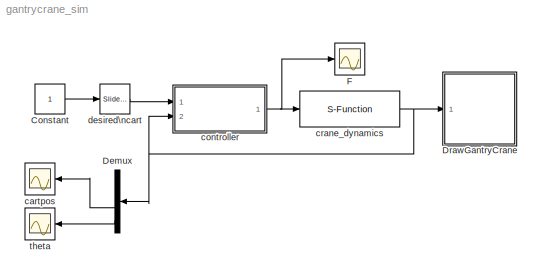
MODEL gantrycrane_sim
KIND model
BLOCK [Constant] Constant
  SID = 16
BLOCK [Demux] Demux
  DisplayOption = bar
  Ports = [1, 4]
  SID = 74
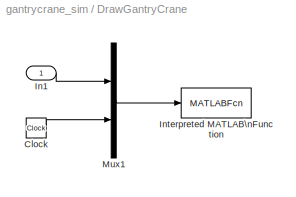
BLOCK [SubSystem] DrawGantryCrane
  Ports = [1]
  RequestExecContextInheritance = off
  SID = 11
BLOCK [Clock] DrawGantryCrane/Clock
  SID = 8
BLOCK [Inport] DrawGantryCrane/In1
  IconDisplay = Port number
  SID = 12
BLOCK [MATLABFcn] DrawGantryCrane/Interpreted MATLAB\nFunction
  MATLABFcn = drawGantryCrane(u,bar,crane,L1,R1)
  OutputDimensions = 0
  Ports = [1]
  SID = 10
  SampleTime = 0.1
BLOCK [Mux] DrawGantryCrane/Mux1
  DisplayOption = bar
  Inputs = 2
  Ports = [2, 1]
  SID = 9
BLOCK [Scope] F
  DataFormat = StructureWithTime
  Floating = off
  NumInputPorts = 1
  Ports = [1]
  SID = 51
  SampleTime = 0
  SaveName = ScopeData3
  ShowLegends = off
  TimeRange = 30
  YMax = 20000
  YMin = -20000
BLOCK [Scope] cartpos
  DataFormat = StructureWithTime
  Floating = off
  NumInputPorts = 1
  Ports = [1]
  SID = 39
  SampleTime = 0
  ShowLegends = off
  TimeRange = 30
  YMax = -0.18
  YMin = -0.35
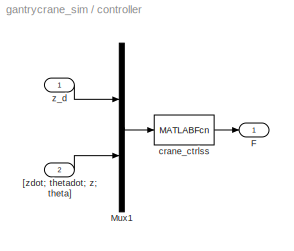
BLOCK [SubSystem] controller
  Ports = [2, 1]
  RequestExecContextInheritance = off
  SID = 75
BLOCK [Outport] controller/F
  IconDisplay = Port number
  SID = 81
BLOCK [Mux] controller/Mux1
  DisplayOption = bar
  Inputs = 2
  Ports = [2, 1]
  SID = 79
BLOCK [Inport] controller/[zdot; thetadot; z; theta]
  IconDisplay = Port number
  Port = 2
  SID = 77
BLOCK [MATLABFcn] controller/crane_ctrlss
  MATLABFcn = crane_ctrlss(u,P)
  OutputDimensions = 1
  Ports = [1, 1]
  SID = 80
  SampleTime = P.Ts
BLOCK [Inport] controller/z_d
  IconDisplay = Port number
  SID = 76
BLOCK [S-Function] crane_dynamics
  EnableBusSupport = off
  FunctionName = crane_dynamics
  Parameters = P
  Ports = [1, 1]
  SID = 19
BLOCK [Reference] desired\ncart  REF=simulink/Math\nOperations/Slider\nGain
  Ports = [1, 1]
  SID = 15
  SourceBlock = simulink/Math\nOperations/Slider\nGain
  SourceType = Slider Gain
  gain = 10
  high = 10
  low = -10
BLOCK [Scope] theta
  DataFormat = StructureWithTime
  Floating = off
  NumInputPorts = 1
  Ports = [1]
  SID = 40
  SampleTime = 0
  SaveName = ScopeData1
  ShowLegends = off
  TimeRange = 30
  YMax = 3
  YMin = -3
  ZoomMode = xonly
LINE Constant:1 -> desired\ncart:1
LINE Demux:3 -> cartpos:1
LINE Demux:4 -> theta:1
LINE DrawGantryCrane/Clock:1 -> DrawGantryCrane/Mux1:2
LINE DrawGantryCrane/In1:1 -> DrawGantryCrane/Mux1:1
LINE DrawGantryCrane/Mux1:1 -> DrawGantryCrane/Interpreted MATLAB\nFunction:1
LINE controller/Mux1:1 -> controller/crane_ctrlss:1
LINE controller/[zdot; thetadot; z; theta]:1 -> controller/Mux1:2
LINE controller/crane_ctrlss:1 -> controller/F:1
LINE controller/z_d:1 -> controller/Mux1:1
NET controller:1 -> F:1, crane_dynamics:1
NET crane_dynamics:1 -> Demux:1, DrawGantryCrane:1, controller:2
LINE desired\ncart:1 -> controller:1
note: NET lines group one-source signal fan-out (src -> all destinations, sorted); 1:1 wires keep LINE
